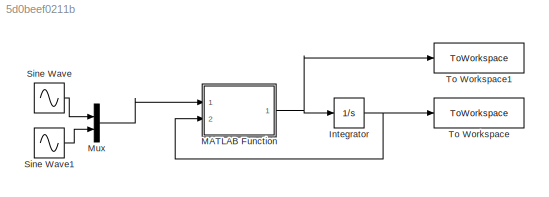
MODEL slx_5d0beef0211b
KIND model
CONFIG AbsTol = auto
CONFIG EnableMultiTasking = off
CONFIG FixedStep = auto
CONFIG MaxStep = auto
CONFIG MinStep = auto
CONFIG RelTol = 1e-9
CONFIG SampleTimeConstraint = Unconstrained
CONFIG Solver = VariableStepAuto
CONFIG SolverName = VariableStepAuto
CONFIG StartTime = 0.0
CONFIG StopTime = 30.0
BLOCK [Integrator] Integrator
  InitialCondition = x_0
  Ports = [1, 1]
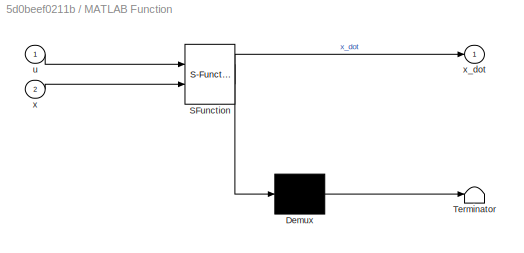
BLOCK [SubSystem] MATLAB Function
  ErrorFcn = Stateflow.Translate.translate
  PermitHierarchicalResolution = ExplicitOnly
  Ports = [2, 1]
  RequestExecContextInheritance = off
  SFBlockType = MATLAB Function
  TreatAsAtomicUnit = on
BLOCK [Demux] MATLAB Function/ Demux 
  Outputs = 1
  Ports = [1, 1]
BLOCK [S-Function] MATLAB Function/ SFunction 
  EnableBusSupport = on
  FunctionName = sf_sfun
  Parameters = P
  PortCounts = [2 2]
  Ports = [2, 2]
  SFcnIsStateOwnerBlock = off
  SFunctionDeploymentMode = off
  Tag = Stateflow S-Function 2
BLOCK [Terminator] MATLAB Function/ Terminator 
BLOCK [Inport] MATLAB Function/u
  IconDisplay = Port number
BLOCK [Inport] MATLAB Function/x
  IconDisplay = Port number
  Port = 2
BLOCK [Outport] MATLAB Function/x_dot
  IconDisplay = Port number
BLOCK [Mux] Mux
  DisplayOption = bar
  Inputs = 2
  Ports = [2, 1]
BLOCK [Sin] Sine Wave
  Amplitude = .2
  Ports = [0, 1]
  SampleTime = 0
BLOCK [Sin] Sine Wave1
  Amplitude = .2
  Phase = pi/2
  Ports = [0, 1]
  SampleTime = 0
BLOCK [ToWorkspace] To Workspace
  FixptAsFi = on
  MaxDataPoints = inf
  Ports = [1]
  SampleTime = -1
  VariableName = x
BLOCK [ToWorkspace] To Workspace1
  FixptAsFi = on
  MaxDataPoints = inf
  Ports = [1]
  SampleTime = -1
  VariableName = x_dot
NET Integrator:1 -> MATLAB Function:2, To Workspace:1
NET MATLAB Function:1 -> Integrator:1, To Workspace1:1
LINE Mux:1 -> MATLAB Function:1
LINE Sine Wave1:1 -> Mux:2
LINE Sine Wave:1 -> Mux:1
note: NET lines group one-source signal fan-out (src -> all destinations, sorted); 1:1 wires keep LINE
CHART MATLAB Function states=1 transitions=1
  STATE_LABEL 'eML_blk_kernel()'
  STATE_LABEL 'SCRIPT:\nfunction x_dot = EOM(u, x, P)\ntheta   = x(1:2);\nphi     = x(3:4);\n\nM = zeros(10);\nb = zeros(10,1);\n% Row 1\nM(1,4) = P.a4*sin(phi(2)) - P.c4*cos(phi(2));\nM(1,5) = 1;\n% Row 2\nM(2,1) =-P.r2*sin(theta(1));\nM(2,3) =-P.a4*cos(phi(1))*sin(phi(2)) + P.c4*cos(phi(1))*cos(phi(2));\nM(2,4) =-P.a4*sin(phi(1))*cos(phi(2)) - P.c4*cos(phi(1))*sin(phi(2));\nM(2,6) = 1;\n% Row 3\nM(3,1) = P.r2*cos(theta(1));\nM...<+691ch>'
